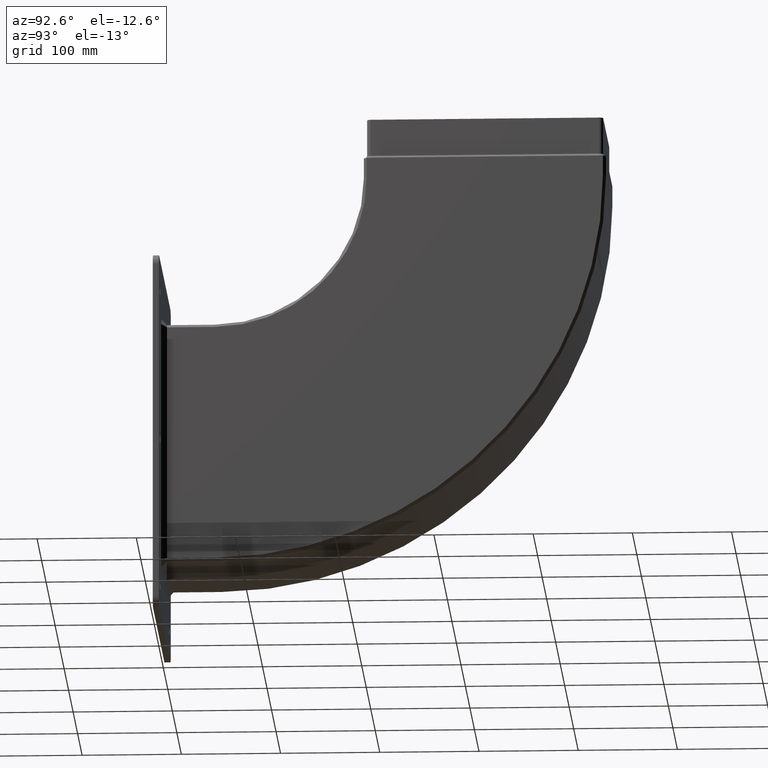
[diagram: clean part render]
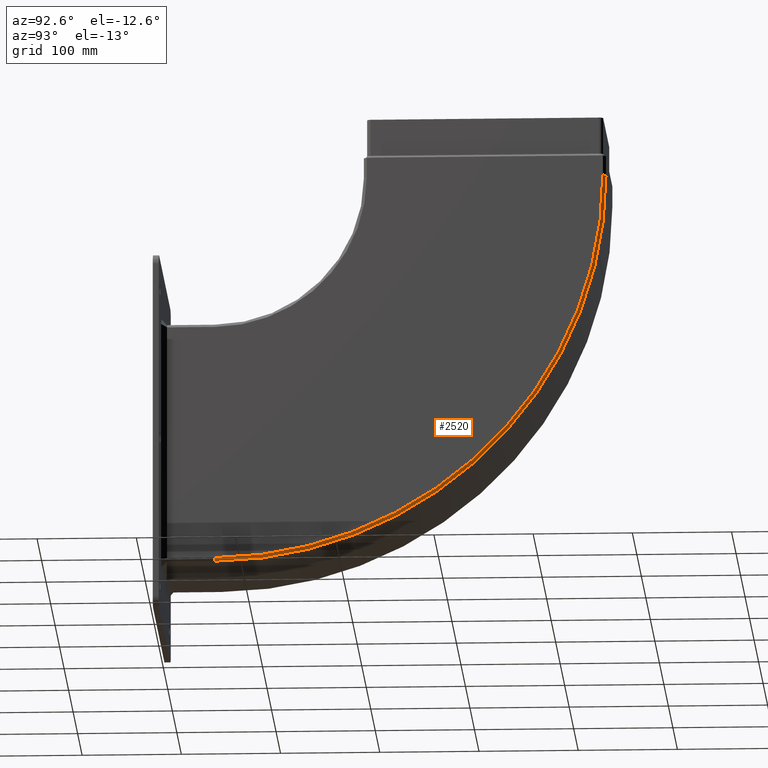
[diagram: same view with one face highlighted and labeled with its STEP entity id]
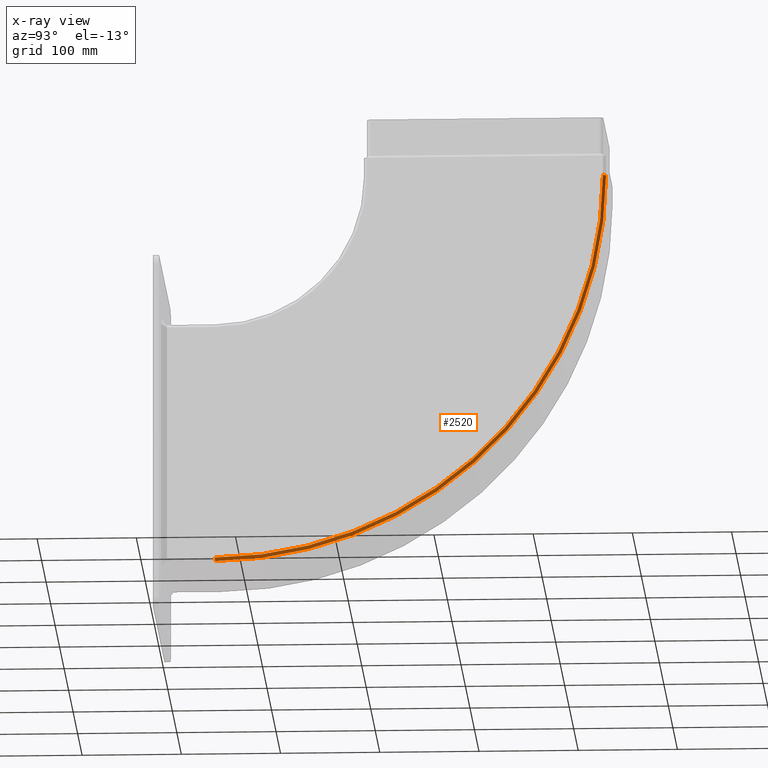
[diagram: x-ray of the same camera — body ghosted, the highlighted face saturated]
A machine part, auxiliary view. The second image highlights one B-rep face of the part: STEP entity #2520.
The next image is the same camera in x-ray: the body ghosted, the highlighted face saturated — about 0% of this face is hidden behind the body in this view.
In plain terms, the highlighted conical surface has half-angle 45 deg.
Its self-contained STEP definition (entity closure, byte-faithful):
#67=CONICAL_SURFACE('',#2810,394.,0.785398163397382);
#158=FACE_OUTER_BOUND('',#310,.T.);
#310=EDGE_LOOP('',(#1862,#1863,#1864,#1865));
#455=CIRCLE('',#2802,391.);
#457=CIRCLE('',#2807,394.);
#593=LINE('',#3948,#879);
#605=LINE('',#3976,#891);
#879=VECTOR('',#3178,10.);
#891=VECTOR('',#3212,9.99999999999983);
#1145=VERTEX_POINT('',#3945);
#1146=VERTEX_POINT('',#3947);
#1148=VERTEX_POINT('',#3955);
#1151=VERTEX_POINT('',#3968);
#1397=EDGE_CURVE('',#1146,#1145,#593,.T.);
#1401=EDGE_CURVE('',#1148,#1146,#455,.T.);
#1408=EDGE_CURVE('',#1145,#1151,#457,.T.);
#1412=EDGE_CURVE('',#1151,#1148,#605,.T.);
#1862=ORIENTED_EDGE('',*,*,#1408,.T.);
#1863=ORIENTED_EDGE('',*,*,#1412,.T.);
#1864=ORIENTED_EDGE('',*,*,#1401,.T.);
#1865=ORIENTED_EDGE('',*,*,#1397,.T.);
#2520=ADVANCED_FACE('',(#158),#67,.T.);
#2802=AXIS2_PLACEMENT_3D('',#3956,#3186,#3187);
#2807=AXIS2_PLACEMENT_3D('',#3969,#3201,#3202);
#2810=AXIS2_PLACEMENT_3D('',#3975,#3210,#3211);
#3178=DIRECTION('',(-0.707106781186621,-2.09345661157812E-14,-0.707106781186474));
#3186=DIRECTION('center_axis',(-1.,2.24869401093226E-16,-5.76536868928153E-16));
#3187=DIRECTION('ref_axis',(-1.0827946358803E-17,-1.,6.68297690702371E-32));
#3201=DIRECTION('center_axis',(1.,-9.10480812791568E-16,4.93038065763131E-31));
#3202=DIRECTION('ref_axis',(-1.0827946358803E-17,-1.,6.68297690702371E-32));
#3210=DIRECTION('center_axis',(-1.,9.10480812791568E-16,-4.93038065763131E-31));
#3211=DIRECTION('ref_axis',(-1.0827946358803E-17,-1.,6.68297690702371E-32));
#3212=DIRECTION('',(0.70710678118657,-0.707106781186525,2.37032615757471E-14));
#3945=CARTESIAN_POINT('',(71.2500000000008,59.9999999999999,-122.));
#3947=CARTESIAN_POINT('',(74.2500000000015,60.,-119.));
#3948=CARTESIAN_POINT('',(74.2500000000015,60.,-119.));
#3955=CARTESIAN_POINT('',(74.2500000000013,451.,272.));
#3956=CARTESIAN_POINT('Origin',(74.2500000000013,60.,272.));
#3968=CARTESIAN_POINT('',(71.2500000000008,454.,272.));
#3969=CARTESIAN_POINT('Origin',(71.2500000000008,60.,272.));
#3975=CARTESIAN_POINT('Origin',(71.2500000000008,60.,272.));
#3976=CARTESIAN_POINT('',(74.2500000000014,451.,272.));